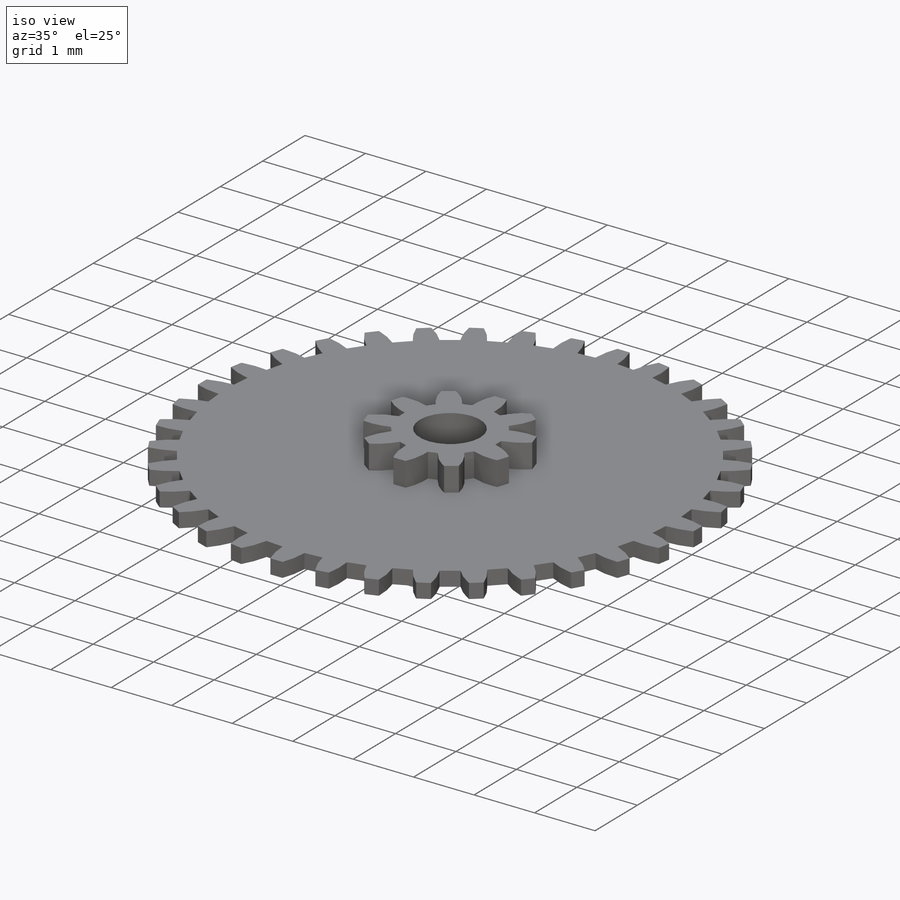
[diagram: iso view]
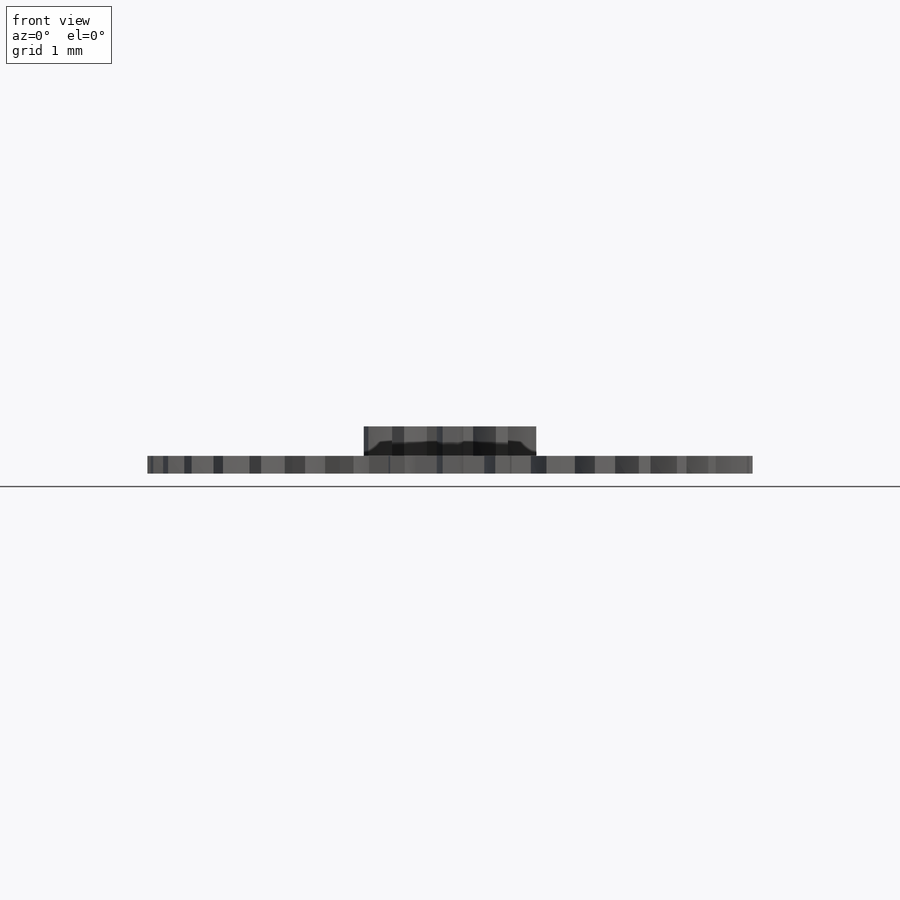
[diagram: front view]
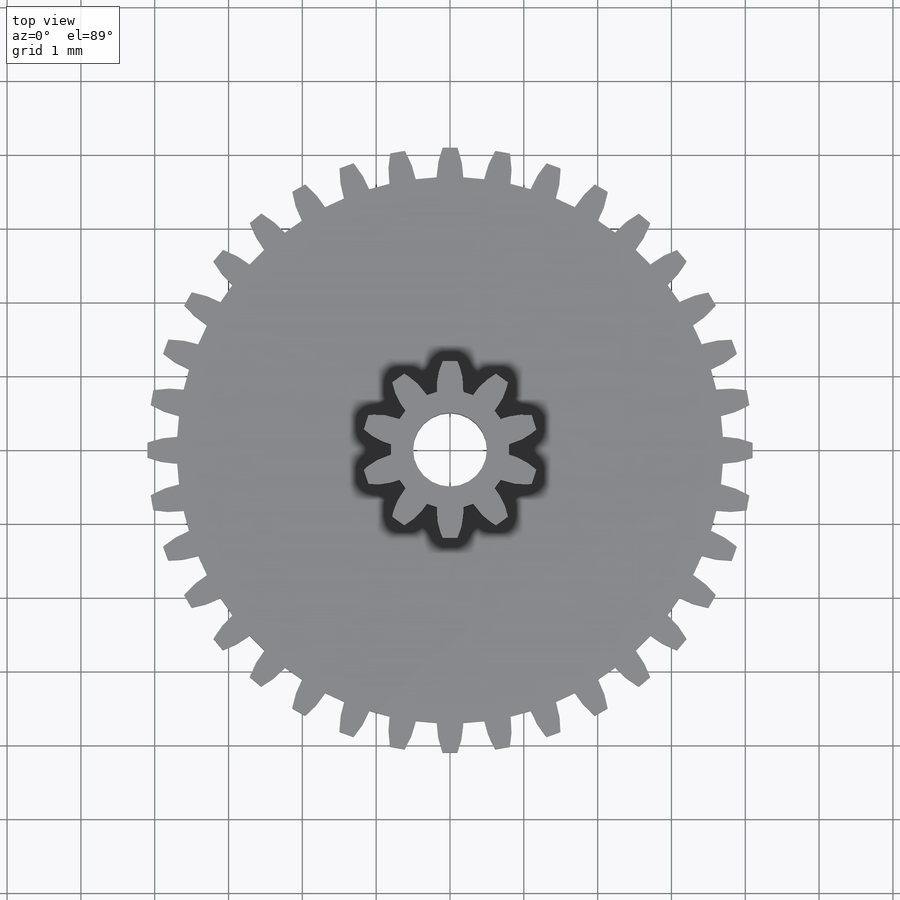
[diagram: top view]
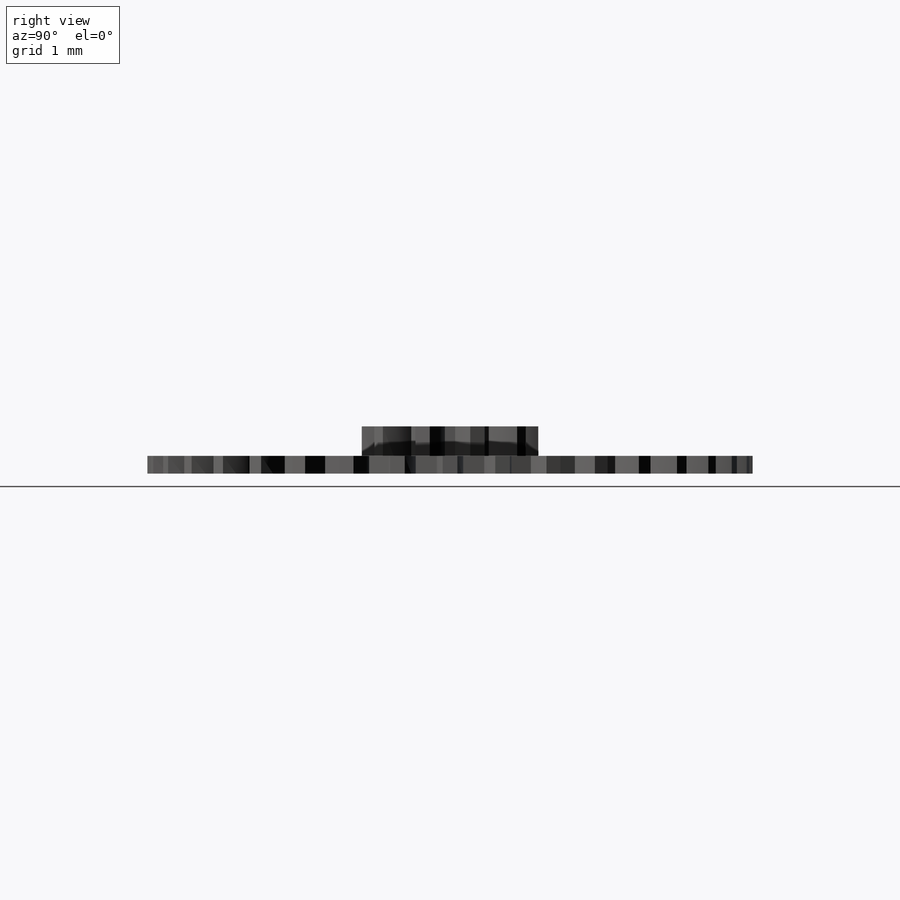
[diagram: right view]
SOLIDWORKS PART (.sldprt)
format: sldprt  version: not decoded by parser v0  size: 457,216 bytes
history: native  units: mm
features: sketch x5, extrude x4, pattern_circular x2, material x1, cut_extrude x1 (+11 scaffold rows collapsed)
feature tree (24):
  scaffold x11  (default folders/planes/origin — collapsed)
  material  "Material <not specified>"
  sketch  "Sketch1"  dims[D1=7.4mm]
  extrude  "Boss-Extrude1"  Depth=0.24mm
  sketch  "Sketch3"  dims[D1=8.2mm D2=0.18mm D3=0.1mm]
  extrude  "Boss-Extrude2"  Depth=0.24mm
  pattern_circular  "CirPattern1"  Count=36 Angle=10deg
  sketch  "Sketch4"  dims[D1=1.6mm]
  extrude  "Boss-Extrude3"  Depth=0.4mm
  sketch  "Sketch5"  dims[D1=2.4mm D2=0.18mm D3=0.1mm]
  extrude  "Boss-Extrude4"  Depth=0.4mm
  pattern_circular  "CirPattern2"  Count=10 Angle=360deg
  sketch  "Sketch6"  dims[D1=1.0mm]
  cut_extrude  "Cut-Extrude1"  [1 undecoded]
decode coverage: 11 of 12 modeling features carry decoded parameters
note: 1 parameter value undecoded
note: suppression state not decoded; provenance and decode notes live in map.json
